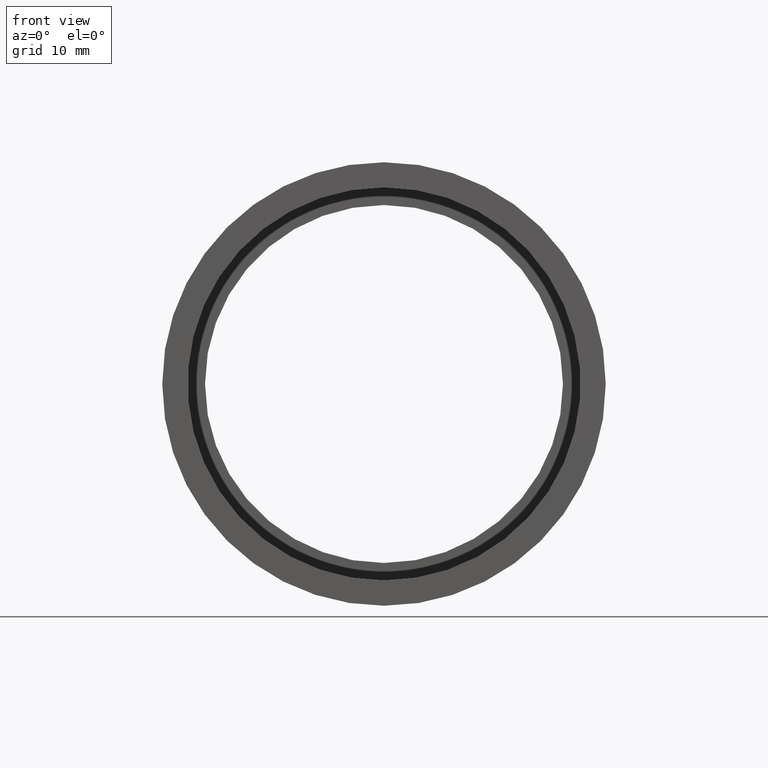
[diagram: clean part render]
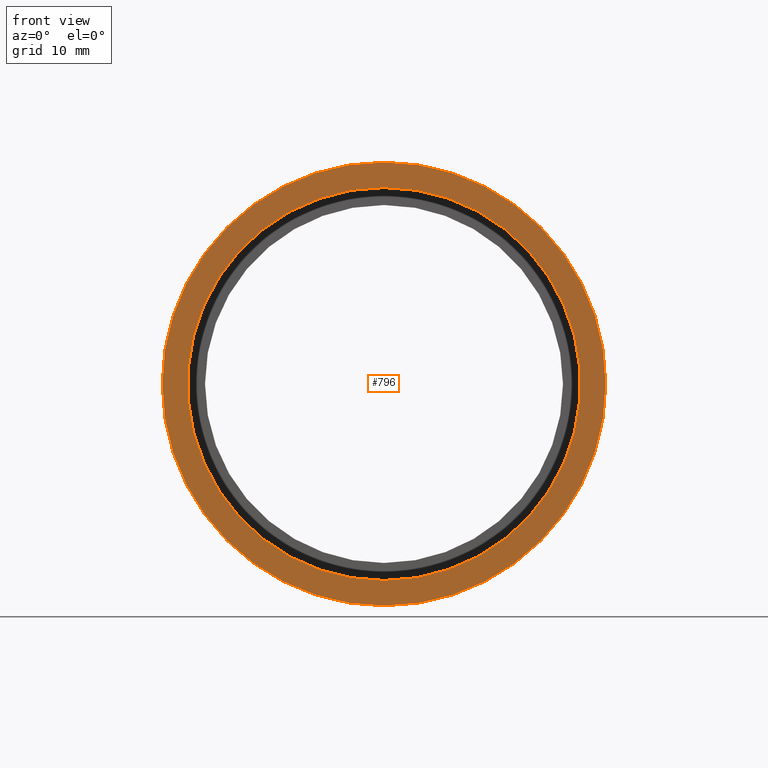
[diagram: same view with one face highlighted and labeled with its STEP entity id]
A machine part, front view. The second image highlights one B-rep face of the part: STEP entity #796.
In plain terms, the highlighted planar face has unit normal (-0, 1, 0).
Its self-contained STEP definition (entity closure, byte-faithful):
#16 = DIRECTION ( 'NONE',  ( -0.0000000000000000000, 1.000000000000000000, 0.0000000000000000000 ) ) ;
#18 = FACE_BOUND ( 'NONE', #641, .T. ) ;
#39 = AXIS2_PLACEMENT_3D ( 'NONE', #577, #508, #568 ) ;
#44 = AXIS2_PLACEMENT_3D ( 'NONE', #615, #235, #729 ) ;
#54 = ORIENTED_EDGE ( 'NONE', *, *, #746, .T. ) ;
#77 = DIRECTION ( 'NONE',  ( -0.0000000000000000000, 1.000000000000000000, -0.0000000000000000000 ) ) ;
#132 = FACE_OUTER_BOUND ( 'NONE', #213, .T. ) ;
#143 = CIRCLE ( 'NONE', #44, 22.50000000000002100 ) ;
#187 = CARTESIAN_POINT ( 'NONE',  ( 2.755455298081547100E-015, -2.775557561562891400E-014, -22.50000000000002100 ) ) ;
#205 = AXIS2_PLACEMENT_3D ( 'NONE', #779, #16, #282 ) ;
#211 = DIRECTION ( 'NONE',  ( 0.0000000000000000000, 0.0000000000000000000, 1.000000000000000000 ) ) ;
#213 = EDGE_LOOP ( 'NONE', ( #489, #539 ) ) ;
#235 = DIRECTION ( 'NONE',  ( -0.0000000000000000000, 1.000000000000000000, -0.0000000000000000000 ) ) ;
#249 = VERTEX_POINT ( 'NONE', #597 ) ;
#259 = CARTESIAN_POINT ( 'NONE',  ( 0.0000000000000000000, -2.775557561562891400E-014, 0.0000000000000000000 ) ) ;
#276 = AXIS2_PLACEMENT_3D ( 'NONE', #259, #77, #392 ) ;
#282 = DIRECTION ( 'NONE',  ( 0.0000000000000000000, 0.0000000000000000000, 1.000000000000000000 ) ) ;
#351 = CARTESIAN_POINT ( 'NONE',  ( 0.0000000000000000000, -2.775557561562891400E-014, 0.0000000000000000000 ) ) ;
#376 = AXIS2_PLACEMENT_3D ( 'NONE', #351, #522, #211 ) ;
#392 = DIRECTION ( 'NONE',  ( 0.0000000000000000000, 0.0000000000000000000, 1.000000000000000000 ) ) ;
#397 = ORIENTED_EDGE ( 'NONE', *, *, #411, .T. ) ;
#411 = EDGE_CURVE ( 'NONE', #771, #671, #143, .T. ) ;
#449 = CARTESIAN_POINT ( 'NONE',  ( 0.0000000000000000000, -2.775557561562891400E-014, 22.50000000000002100 ) ) ;
#489 = ORIENTED_EDGE ( 'NONE', *, *, #798, .F. ) ;
#508 = DIRECTION ( 'NONE',  ( -0.0000000000000000000, 1.000000000000000000, -0.0000000000000000000 ) ) ;
#522 = DIRECTION ( 'NONE',  ( -0.0000000000000000000, 1.000000000000000000, -0.0000000000000000000 ) ) ;
#539 = ORIENTED_EDGE ( 'NONE', *, *, #676, .F. ) ;
#558 = CIRCLE ( 'NONE', #276, 22.50000000000002100 ) ;
#568 = DIRECTION ( 'NONE',  ( 0.0000000000000000000, 0.0000000000000000000, 1.000000000000000000 ) ) ;
#577 = CARTESIAN_POINT ( 'NONE',  ( 0.0000000000000000000, -2.775557561562891400E-014, 0.0000000000000000000 ) ) ;
#597 = CARTESIAN_POINT ( 'NONE',  ( 3.110602869834279600E-015, -2.775557561562891400E-014, -25.40000000000002000 ) ) ;
#615 = CARTESIAN_POINT ( 'NONE',  ( 0.0000000000000000000, -2.775557561562891400E-014, 0.0000000000000000000 ) ) ;
#641 = EDGE_LOOP ( 'NONE', ( #397, #54 ) ) ;
#653 = PLANE ( 'NONE',  #205 ) ;
#660 = CIRCLE ( 'NONE', #39, 25.40000000000002000 ) ;
#671 = VERTEX_POINT ( 'NONE', #187 ) ;
#676 = EDGE_CURVE ( 'NONE', #249, #732, #660, .T. ) ;
#729 = DIRECTION ( 'NONE',  ( 0.0000000000000000000, 0.0000000000000000000, 1.000000000000000000 ) ) ;
#732 = VERTEX_POINT ( 'NONE', #760 ) ;
#746 = EDGE_CURVE ( 'NONE', #671, #771, #558, .T. ) ;
#760 = CARTESIAN_POINT ( 'NONE',  ( 0.0000000000000000000, -2.775557561562891400E-014, 25.40000000000002000 ) ) ;
#771 = VERTEX_POINT ( 'NONE', #449 ) ;
#779 = CARTESIAN_POINT ( 'NONE',  ( 25.40000000000002000, -1.460226537307042600E-014, 0.0000000000000000000 ) ) ;
#789 = CIRCLE ( 'NONE', #376, 25.40000000000002000 ) ;
#796 = ADVANCED_FACE ( 'NONE', ( #132, #18 ), #653, .F. ) ;
#798 = EDGE_CURVE ( 'NONE', #732, #249, #789, .T. ) ;